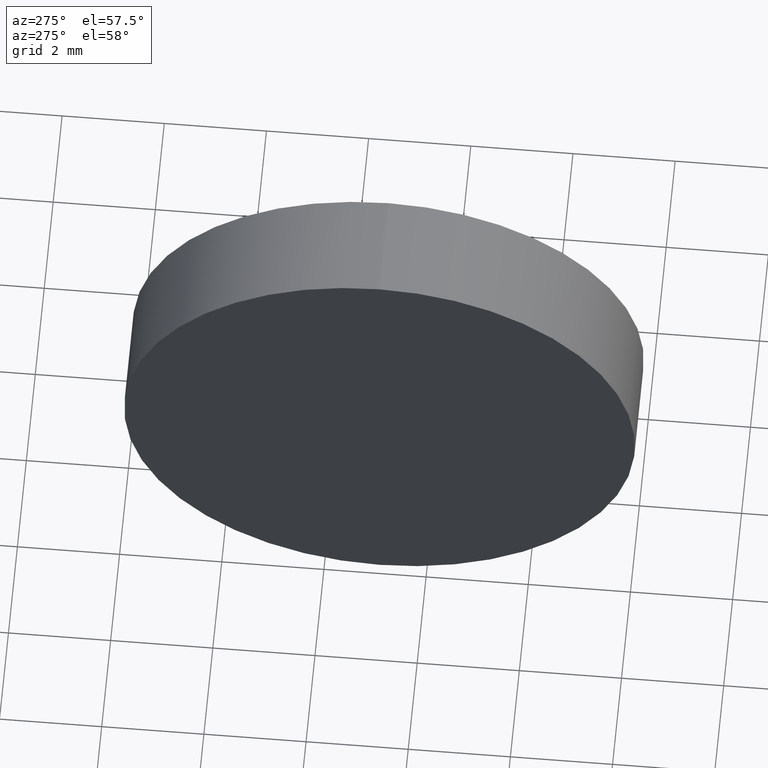
[diagram: clean part render]
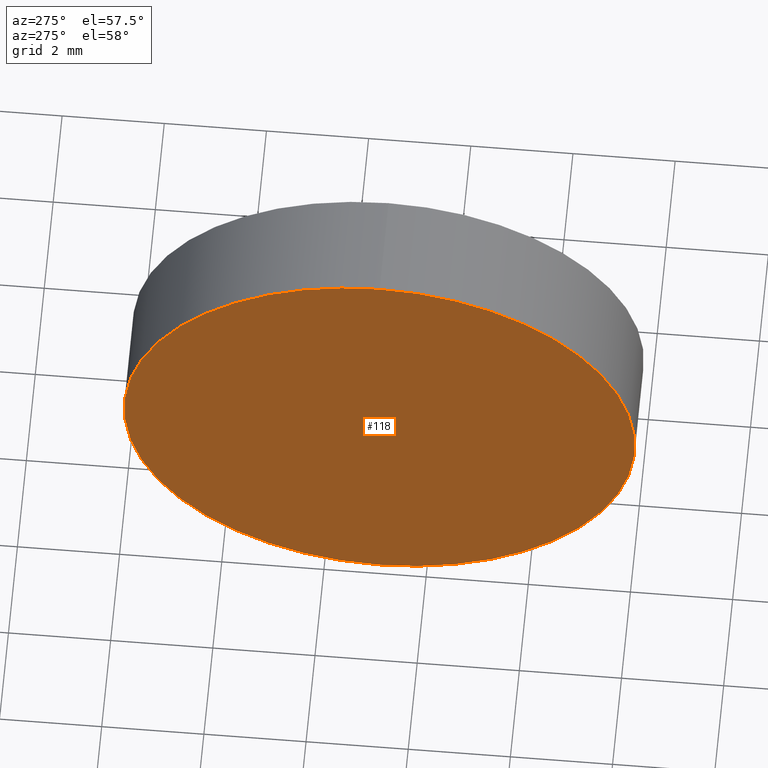
[diagram: same view with one face highlighted and labeled with its STEP entity id]
A machine part, auxiliary view. The second image highlights one B-rep face of the part: STEP entity #118.
In plain terms, the highlighted planar face has unit normal (1, 0, 0).
Its self-contained STEP definition (entity closure, byte-faithful):
#3 = CARTESIAN_POINT ( 'NONE',  ( 104.0628561970244000, 30.91727173960616800, -4.999999999999993800 ) ) ;
#13 = DIRECTION ( 'NONE',  ( 0.0000000000000000000, 0.0000000000000000000, 1.000000000000000000 ) ) ;
#16 = CARTESIAN_POINT ( 'NONE',  ( 104.0628561970244000, 30.91727173960616800, 0.0000000000000000000 ) ) ;
#24 = AXIS2_PLACEMENT_3D ( 'NONE', #16, #56, #31 ) ;
#28 = PLANE ( 'NONE',  #47 ) ;
#31 = DIRECTION ( 'NONE',  ( 0.0000000000000000000, 0.0000000000000000000, 1.000000000000000000 ) ) ;
#37 = DIRECTION ( 'NONE',  ( 1.000000000000000000, 0.0000000000000000000, 0.0000000000000000000 ) ) ;
#42 = VERTEX_POINT ( 'NONE', #81 ) ;
#47 = AXIS2_PLACEMENT_3D ( 'NONE', #61, #37, #137 ) ;
#52 = AXIS2_PLACEMENT_3D ( 'NONE', #138, #100, #13 ) ;
#56 = DIRECTION ( 'NONE',  ( -1.000000000000000000, -0.0000000000000000000, -0.0000000000000000000 ) ) ;
#60 = EDGE_CURVE ( 'NONE', #42, #76, #101, .T. ) ;
#61 = CARTESIAN_POINT ( 'NONE',  ( 104.0628561970244000, 30.91727173960616400, 0.0000000000000000000 ) ) ;
#67 = EDGE_LOOP ( 'NONE', ( #104, #83 ) ) ;
#76 = VERTEX_POINT ( 'NONE', #3 ) ;
#81 = CARTESIAN_POINT ( 'NONE',  ( 104.0628561970244000, 30.91727173960616800, 4.999999999999993800 ) ) ;
#83 = ORIENTED_EDGE ( 'NONE', *, *, #120, .T. ) ;
#97 = CIRCLE ( 'NONE', #52, 4.999999999999993800 ) ;
#100 = DIRECTION ( 'NONE',  ( -1.000000000000000000, -0.0000000000000000000, -0.0000000000000000000 ) ) ;
#101 = CIRCLE ( 'NONE', #24, 4.999999999999993800 ) ;
#104 = ORIENTED_EDGE ( 'NONE', *, *, #60, .T. ) ;
#118 = ADVANCED_FACE ( 'NONE', ( #130 ), #28, .F. ) ;
#120 = EDGE_CURVE ( 'NONE', #76, #42, #97, .T. ) ;
#130 = FACE_OUTER_BOUND ( 'NONE', #67, .T. ) ;
#137 = DIRECTION ( 'NONE',  ( 0.0000000000000000000, 0.0000000000000000000, -1.000000000000000000 ) ) ;
#138 = CARTESIAN_POINT ( 'NONE',  ( 104.0628561970244000, 30.91727173960616800, 0.0000000000000000000 ) ) ;